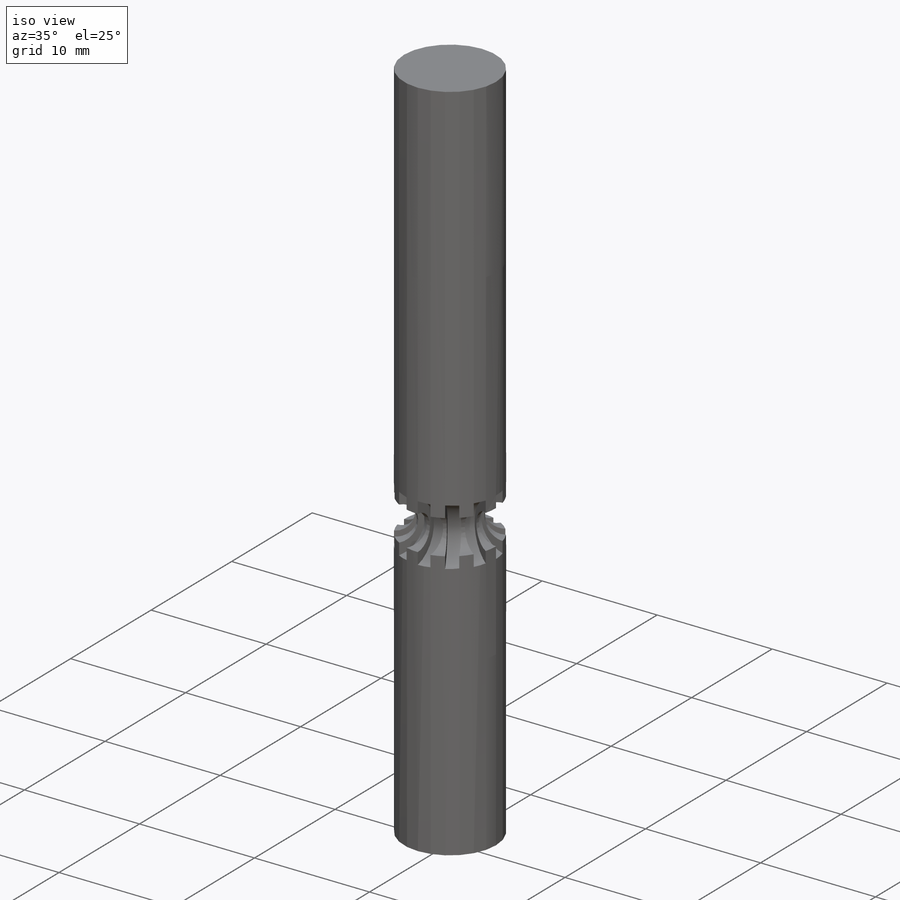
[diagram: iso view]
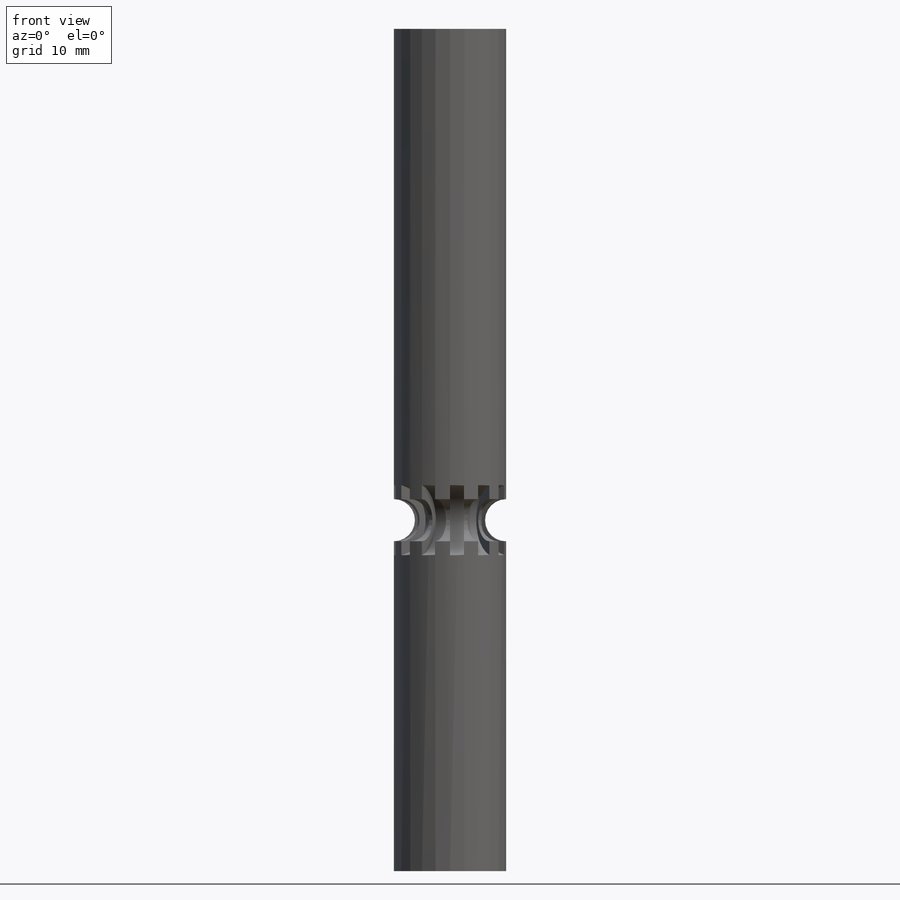
[diagram: front view]
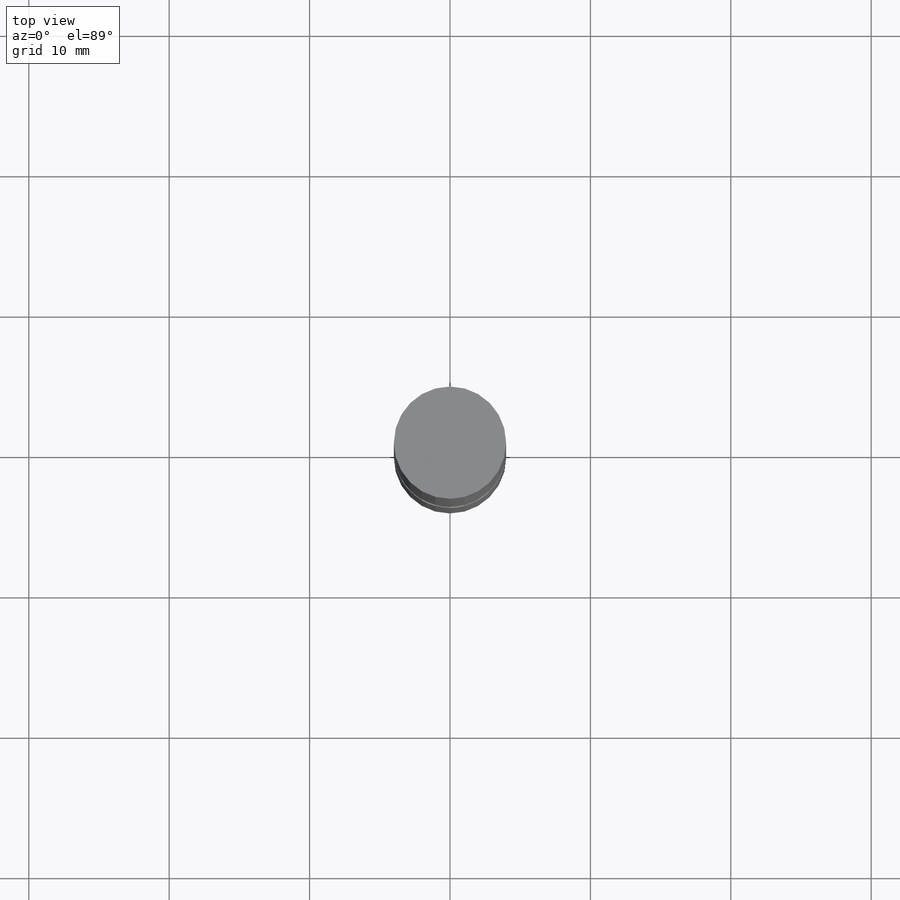
[diagram: top view]
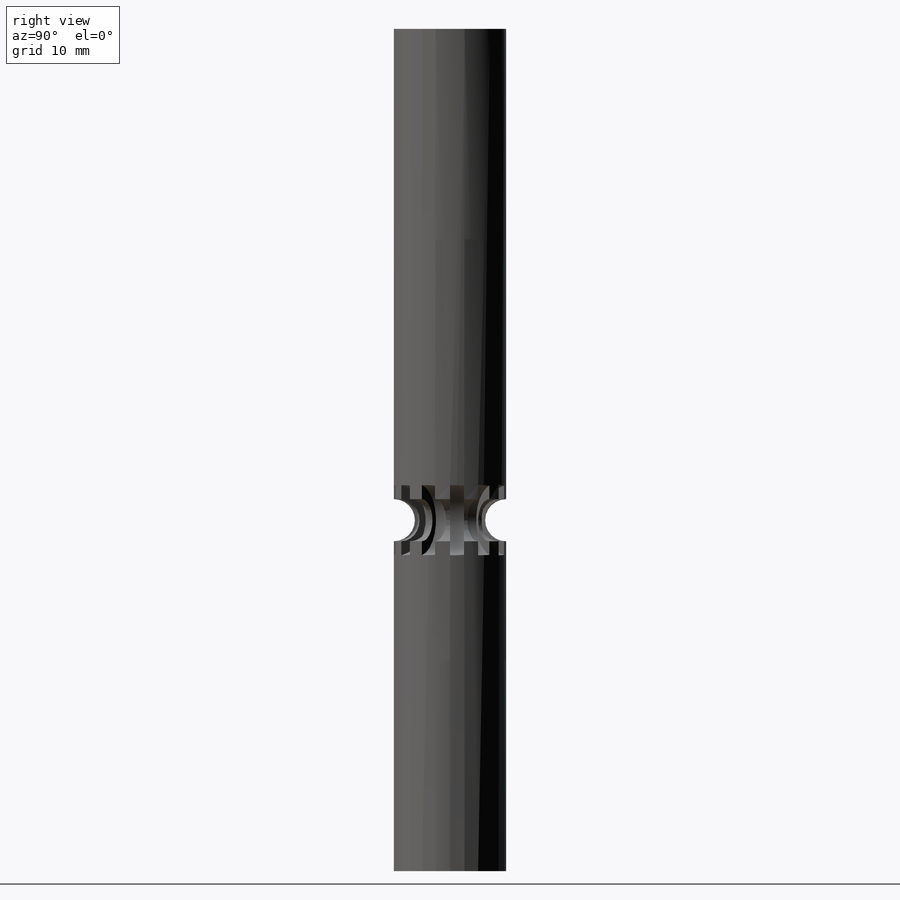
[diagram: right view]
SOLIDWORKS PART (.sldprt)
format: sldprt  version: not decoded by parser v0  size: 275,968 bytes
history: native  units: mm
features: plane x4, sketch x4, thread x2, material x1, extrude x1, cut_extrude x1, sweep x1 (+10 scaffold rows collapsed)
feature tree (24):
  scaffold x10  (default folders/planes/origin — collapsed)
  material  "Matériau <non spécifié>"
  plane  "Plan de face"
  plane  "Plan de dessus"
  plane  "Plan de droite"
  sketch  "Esquisse1"  dims[D1=8.0mm]
  extrude  "Boss.-Extru.1"  [1 undecoded]
  thread  "Représentation de filetage1"  Diameter=15mm  [1 undecoded]
  thread  "Représentation de filetage2"  Diameter=15mm  [1 undecoded]
  plane  "Plan1"  Offset=35mm
  sketch  "Esquisse3"  dims[D1=8.0mm]
  sketch  "Esquisse4"  dims[D1=5.0mm D2=2.0mm]
  cut_extrude  "Enlèv. mat.-Extru.2"  Depth=1mm
  sketch  "Esquisse5"  dims[D1=3.0mm]
  sweep  "Enlèvement de matière-Balayage1"
decode coverage: 7 of 9 modeling features carry decoded parameters
note: 3 parameter values undecoded
note: suppression state not decoded; provenance and decode notes live in map.json
